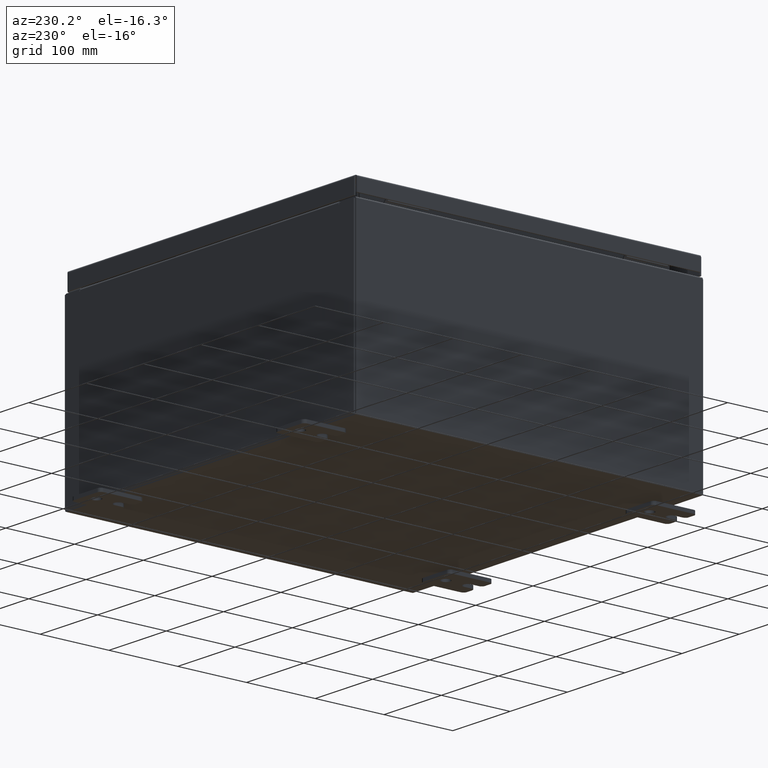
[diagram: clean part render]
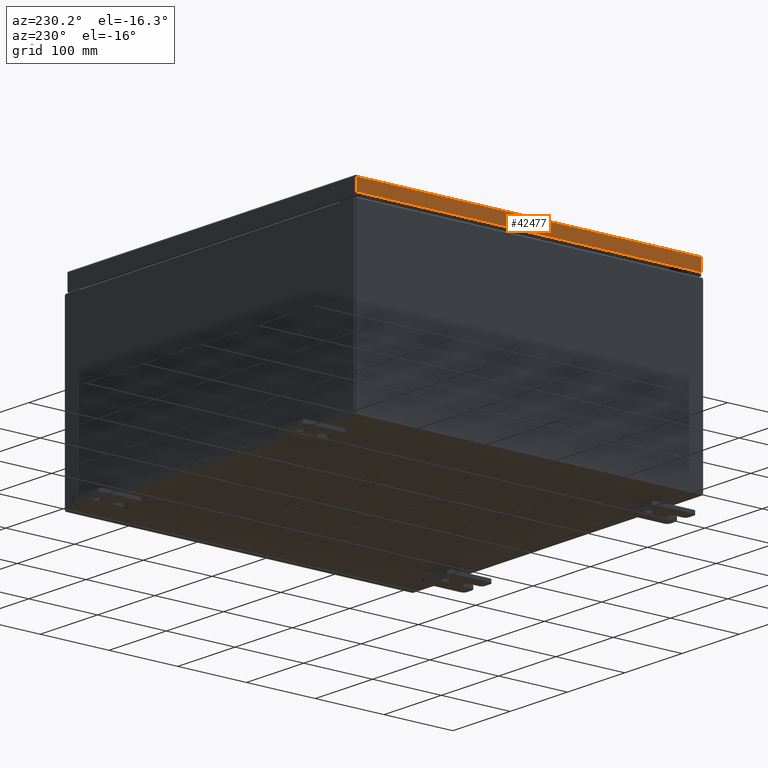
[diagram: same view with one face highlighted and labeled with its STEP entity id]
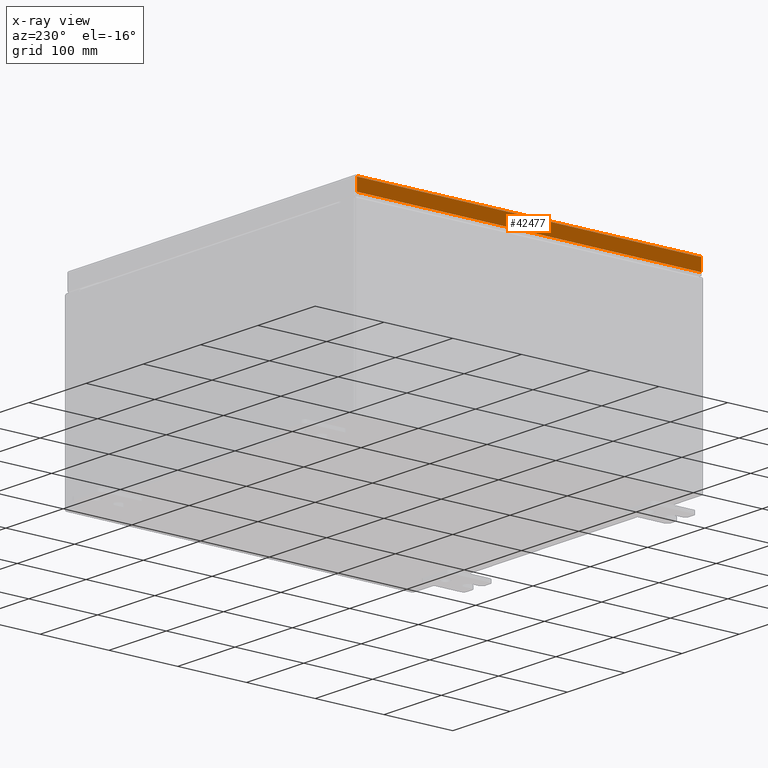
[diagram: x-ray of the same camera — body ghosted, the highlighted face saturated]
A machine part, auxiliary view. The second image highlights one B-rep face of the part: STEP entity #42477.
The next image is the same camera in x-ray: the body ghosted, the highlighted face saturated — about 0% of this face is hidden behind the body in this view.
In plain terms, the highlighted planar face has unit normal (1, 0, -0).
Its self-contained STEP definition (entity closure, byte-faithful):
#3949 = DIRECTION ( 'NONE',  ( -6.068244883885633100E-015, 6.982962677686265900E-015, -1.000000000000000000 ) ) ;
#5475 = FACE_OUTER_BOUND ( 'NONE', #44631, .T. ) ;
#5940 = EDGE_CURVE ( 'NONE', #28746, #23238, #59254, .T. ) ;
#6703 = CARTESIAN_POINT ( 'NONE',  ( -9.937500000000005300, 9.848657864376271200, -0.7949999999999972600 ) ) ;
#7122 = VECTOR ( 'NONE', #21347, 39.37007874015748100 ) ;
#8479 = EDGE_CURVE ( 'NONE', #49684, #50438, #16823, .T. ) ;
#8883 = CARTESIAN_POINT ( 'NONE',  ( -9.937500000000000000, 9.848657864376265900, 1.293368074818658800E-013 ) ) ;
#9967 = DIRECTION ( 'NONE',  ( 1.000000000000000000, 1.099611771034679500E-016, -6.068244883885633100E-015 ) ) ;
#12531 = CARTESIAN_POINT ( 'NONE',  ( -9.937500000000000000, -9.937500000000001800, -0.08769999999999982000 ) ) ;
#13357 = EDGE_CURVE ( 'NONE', #49684, #23238, #53351, .T. ) ;
#15966 = AXIS2_PLACEMENT_3D ( 'NONE', #58830, #9967, #44210 ) ;
#16823 = LINE ( 'NONE', #12531, #55916 ) ;
#18506 = CARTESIAN_POINT ( 'NONE',  ( -9.937500000000003600, -9.937500000000001800, -0.7949999999999997100 ) ) ;
#19905 = VECTOR ( 'NONE', #27966, 39.37007874015748100 ) ;
#21347 = DIRECTION ( 'NONE',  ( -1.099611771034672100E-016, 1.000000000000000000, 1.237063242414006300E-016 ) ) ;
#23238 = VERTEX_POINT ( 'NONE', #6703 ) ;
#24837 = ORIENTED_EDGE ( 'NONE', *, *, #13357, .T. ) ;
#27059 = ORIENTED_EDGE ( 'NONE', *, *, #8479, .F. ) ;
#27966 = DIRECTION ( 'NONE',  ( -6.068244883885633100E-015, 6.982962677686265900E-015, -1.000000000000000000 ) ) ;
#28746 = VERTEX_POINT ( 'NONE', #47526 ) ;
#30156 = CARTESIAN_POINT ( 'NONE',  ( -9.937500000000001800, 9.848657864376269400, -0.08769999999999982000 ) ) ;
#37255 = VECTOR ( 'NONE', #3949, 39.37007874015748100 ) ;
#39301 = PLANE ( 'NONE',  #15966 ) ;
#42477 = ADVANCED_FACE ( 'NONE', ( #5475 ), #39301, .F. ) ;
#44210 = DIRECTION ( 'NONE',  ( -6.068244883885633100E-015, 0.0000000000000000000, -1.000000000000000000 ) ) ;
#44385 = LINE ( 'NONE', #57349, #19905 ) ;
#44631 = EDGE_LOOP ( 'NONE', ( #27059, #24837, #56221, #52345 ) ) ;
#47526 = CARTESIAN_POINT ( 'NONE',  ( -9.937500000000003600, -9.848657864376265900, -0.7949999999999997100 ) ) ;
#49684 = VERTEX_POINT ( 'NONE', #30156 ) ;
#50438 = VERTEX_POINT ( 'NONE', #60760 ) ;
#52345 = ORIENTED_EDGE ( 'NONE', *, *, #63506, .F. ) ;
#53351 = LINE ( 'NONE', #8883, #37255 ) ;
#55916 = VECTOR ( 'NONE', #61833, 39.37007874015748100 ) ;
#56221 = ORIENTED_EDGE ( 'NONE', *, *, #5940, .F. ) ;
#57349 = CARTESIAN_POINT ( 'NONE',  ( -9.937500000000000000, -9.848657864376271200, -0.07469999999999954500 ) ) ;
#58830 = CARTESIAN_POINT ( 'NONE',  ( -9.937500000000000000, -1.092739197465712800E-015, 6.056399718962504900E-014 ) ) ;
#59254 = LINE ( 'NONE', #18506, #7122 ) ;
#60760 = CARTESIAN_POINT ( 'NONE',  ( -9.937500000000000000, -9.848657864376273000, -0.08769999999999977800 ) ) ;
#61833 = DIRECTION ( 'NONE',  ( 1.099611771034679600E-016, -1.000000000000000000, -4.554220009055657300E-045 ) ) ;
#63506 = EDGE_CURVE ( 'NONE', #50438, #28746, #44385, .T. ) ;